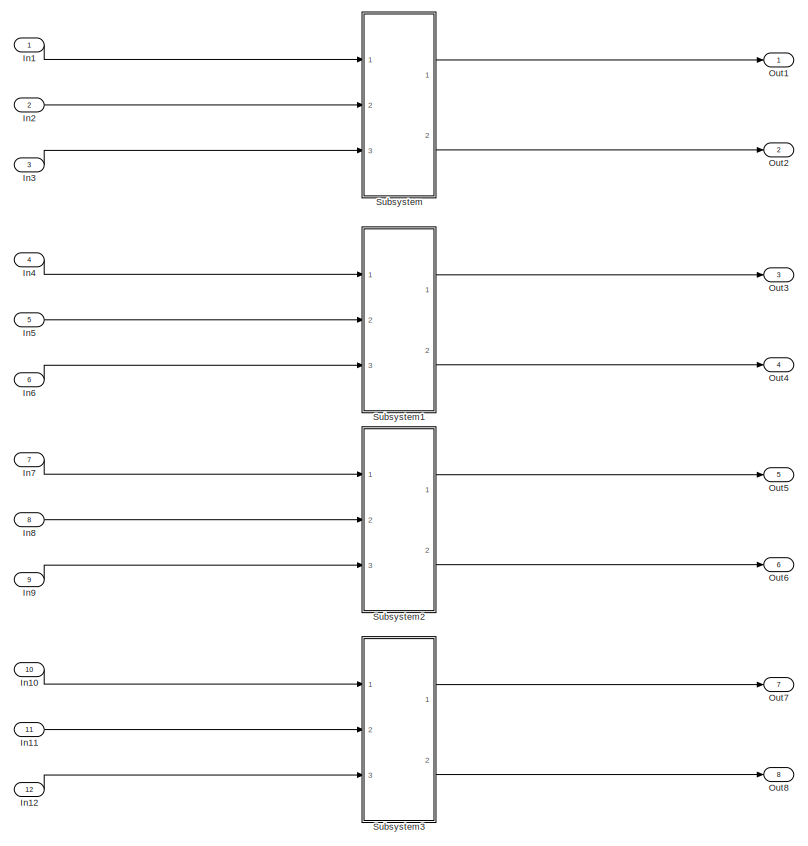
[diagram: root canvas - part 1/2, full width, top band]
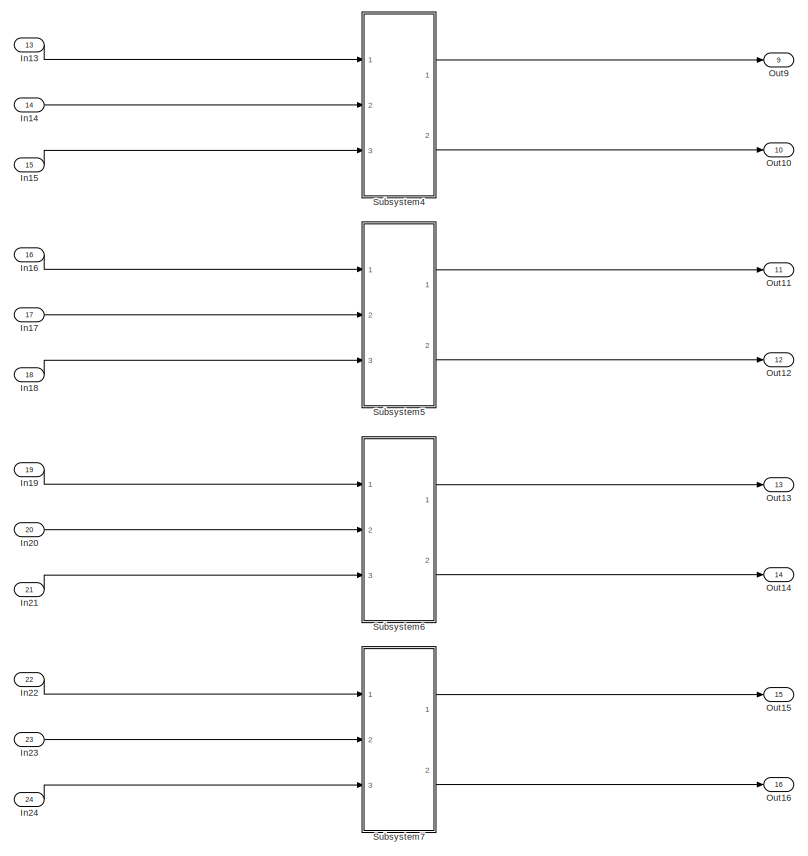
[diagram: root canvas - part 2/2, full width, bottom band]
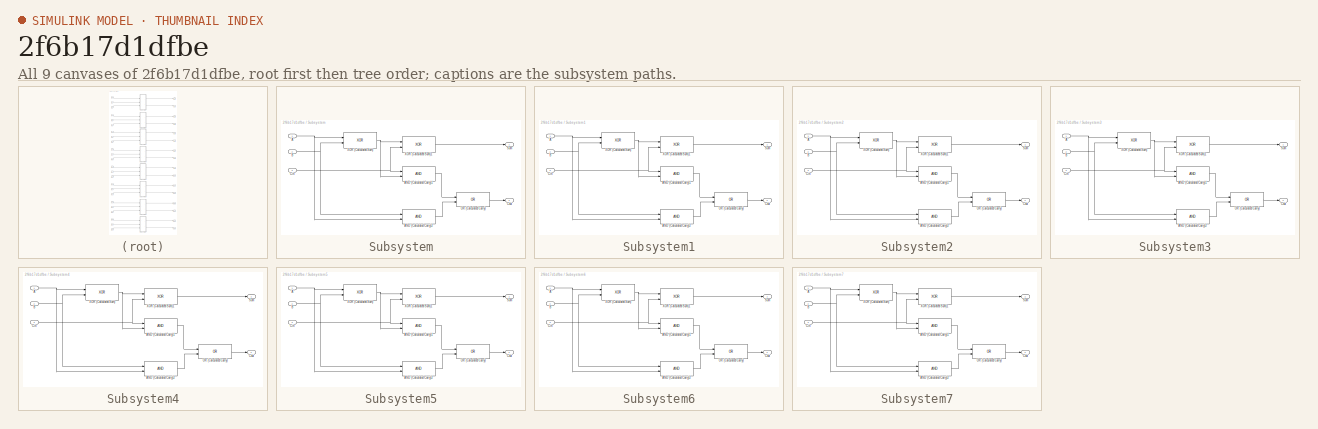
[diagram: thumbnail index - all 9 canvases of the model, root first then tree order]
MODEL slx_2f6b17d1dfbe
KIND model
BLOCK [Inport] In1
  IconDisplay = Port number
  OutDataTypeStr = boolean
  SampleTime = 1
BLOCK [Inport] In10
  IconDisplay = Port number
  OutDataTypeStr = boolean
  Port = 10
  SampleTime = 1
BLOCK [Inport] In11
  IconDisplay = Port number
  OutDataTypeStr = boolean
  Port = 11
  SampleTime = 1
BLOCK [Inport] In12
  IconDisplay = Port number
  OutDataTypeStr = boolean
  Port = 12
  SampleTime = 1
BLOCK [Inport] In13
  IconDisplay = Port number
  OutDataTypeStr = boolean
  Port = 13
  SampleTime = 1
BLOCK [Inport] In14
  IconDisplay = Port number
  OutDataTypeStr = boolean
  Port = 14
  SampleTime = 1
BLOCK [Inport] In15
  IconDisplay = Port number
  OutDataTypeStr = boolean
  Port = 15
  SampleTime = 1
BLOCK [Inport] In16
  IconDisplay = Port number
  OutDataTypeStr = boolean
  Port = 16
  SampleTime = 1
BLOCK [Inport] In17
  IconDisplay = Port number
  OutDataTypeStr = boolean
  Port = 17
  SampleTime = 1
BLOCK [Inport] In18
  IconDisplay = Port number
  OutDataTypeStr = boolean
  Port = 18
  SampleTime = 1
BLOCK [Inport] In19
  IconDisplay = Port number
  OutDataTypeStr = boolean
  Port = 19
  SampleTime = 1
BLOCK [Inport] In2
  IconDisplay = Port number
  OutDataTypeStr = boolean
  Port = 2
  SampleTime = 1
BLOCK [Inport] In20
  IconDisplay = Port number
  OutDataTypeStr = boolean
  Port = 20
  SampleTime = 1
BLOCK [Inport] In21
  IconDisplay = Port number
  OutDataTypeStr = boolean
  Port = 21
  SampleTime = 1
BLOCK [Inport] In22
  IconDisplay = Port number
  OutDataTypeStr = boolean
  Port = 22
  SampleTime = 1
BLOCK [Inport] In23
  IconDisplay = Port number
  OutDataTypeStr = boolean
  Port = 23
  SampleTime = 1
BLOCK [Inport] In24
  IconDisplay = Port number
  OutDataTypeStr = boolean
  Port = 24
  SampleTime = 1
BLOCK [Inport] In3
  IconDisplay = Port number
  OutDataTypeStr = boolean
  Port = 3
  SampleTime = 1
BLOCK [Inport] In4
  IconDisplay = Port number
  OutDataTypeStr = boolean
  Port = 4
  SampleTime = 1
BLOCK [Inport] In5
  IconDisplay = Port number
  OutDataTypeStr = boolean
  Port = 5
  SampleTime = 1
BLOCK [Inport] In6
  IconDisplay = Port number
  OutDataTypeStr = boolean
  Port = 6
  SampleTime = 1
BLOCK [Inport] In7
  IconDisplay = Port number
  OutDataTypeStr = boolean
  Port = 7
  SampleTime = 1
BLOCK [Inport] In8
  IconDisplay = Port number
  OutDataTypeStr = boolean
  Port = 8
  SampleTime = 1
BLOCK [Inport] In9
  IconDisplay = Port number
  OutDataTypeStr = boolean
  Port = 9
  SampleTime = 1
BLOCK [Outport] Out1
  IconDisplay = Port number
BLOCK [Outport] Out10
  IconDisplay = Port number
  Port = 10
BLOCK [Outport] Out11
  IconDisplay = Port number
  Port = 11
BLOCK [Outport] Out12
  IconDisplay = Port number
  Port = 12
BLOCK [Outport] Out13
  IconDisplay = Port number
  Port = 13
BLOCK [Outport] Out14
  IconDisplay = Port number
  Port = 14
BLOCK [Outport] Out15
  IconDisplay = Port number
  Port = 15
BLOCK [Outport] Out16
  IconDisplay = Port number
  Port = 16
BLOCK [Outport] Out2
  IconDisplay = Port number
  Port = 2
BLOCK [Outport] Out3
  IconDisplay = Port number
  Port = 3
BLOCK [Outport] Out4
  IconDisplay = Port number
  Port = 4
BLOCK [Outport] Out5
  IconDisplay = Port number
  Port = 5
BLOCK [Outport] Out6
  IconDisplay = Port number
  Port = 6
BLOCK [Outport] Out7
  IconDisplay = Port number
  Port = 7
BLOCK [Outport] Out8
  IconDisplay = Port number
  Port = 8
BLOCK [Outport] Out9
  IconDisplay = Port number
  Port = 9
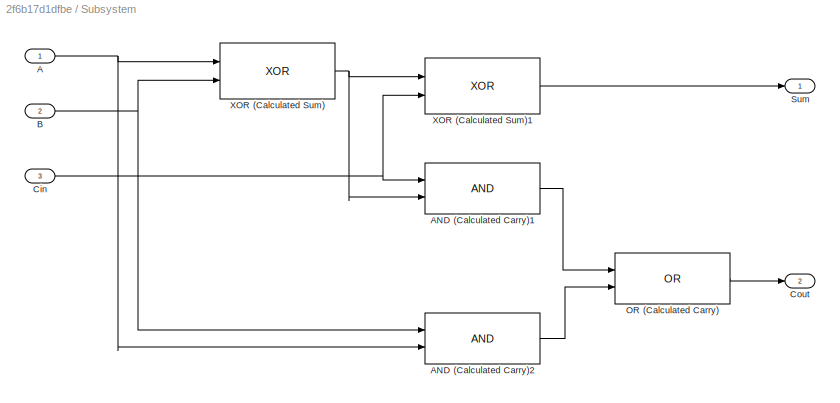
BLOCK [SubSystem] Subsystem
  Ports = [3, 2]
  RequestExecContextInheritance = off
BLOCK [Inport] Subsystem/A
  IconDisplay = Port number
  OutDataTypeStr = boolean
BLOCK [Logic] Subsystem/AND (Calculated Carry)1
  AllPortsSameDT = off
  OutDataTypeStr = boolean
  Ports = [2, 1]
BLOCK [Logic] Subsystem/AND (Calculated Carry)2
  AllPortsSameDT = off
  OutDataTypeStr = boolean
  Ports = [2, 1]
BLOCK [Inport] Subsystem/B
  IconDisplay = Port number
  OutDataTypeStr = boolean
  Port = 2
BLOCK [Inport] Subsystem/Cin
  IconDisplay = Port number
  OutDataTypeStr = boolean
  Port = 3
BLOCK [Outport] Subsystem/Cout
  IconDisplay = Port number
  Port = 2
BLOCK [Logic] Subsystem/OR (Calculated Carry)
  AllPortsSameDT = off
  Operator = OR
  OutDataTypeStr = boolean
  Ports = [2, 1]
BLOCK [Outport] Subsystem/Sum
  IconDisplay = Port number
BLOCK [Logic] Subsystem/XOR (Calculated Sum)
  AllPortsSameDT = off
  Operator = XOR
  OutDataTypeStr = boolean
  Ports = [2, 1]
BLOCK [Logic] Subsystem/XOR (Calculated Sum)1
  AllPortsSameDT = off
  Operator = XOR
  OutDataTypeStr = boolean
  Ports = [2, 1]
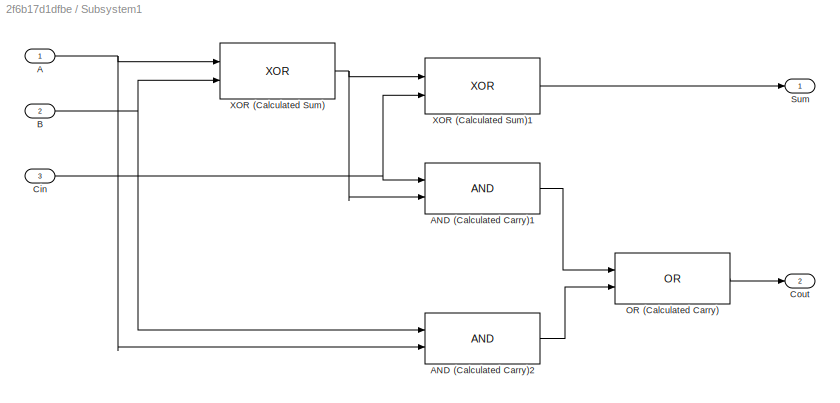
BLOCK [SubSystem] Subsystem1
  Ports = [3, 2]
  RequestExecContextInheritance = off
BLOCK [Inport] Subsystem1/A
  IconDisplay = Port number
  OutDataTypeStr = boolean
BLOCK [Logic] Subsystem1/AND (Calculated Carry)1
  AllPortsSameDT = off
  OutDataTypeStr = boolean
  Ports = [2, 1]
BLOCK [Logic] Subsystem1/AND (Calculated Carry)2
  AllPortsSameDT = off
  OutDataTypeStr = boolean
  Ports = [2, 1]
BLOCK [Inport] Subsystem1/B
  IconDisplay = Port number
  OutDataTypeStr = boolean
  Port = 2
BLOCK [Inport] Subsystem1/Cin
  IconDisplay = Port number
  OutDataTypeStr = boolean
  Port = 3
BLOCK [Outport] Subsystem1/Cout
  IconDisplay = Port number
  Port = 2
BLOCK [Logic] Subsystem1/OR (Calculated Carry)
  AllPortsSameDT = off
  Operator = OR
  OutDataTypeStr = boolean
  Ports = [2, 1]
BLOCK [Outport] Subsystem1/Sum
  IconDisplay = Port number
BLOCK [Logic] Subsystem1/XOR (Calculated Sum)
  AllPortsSameDT = off
  Operator = XOR
  OutDataTypeStr = boolean
  Ports = [2, 1]
BLOCK [Logic] Subsystem1/XOR (Calculated Sum)1
  AllPortsSameDT = off
  Operator = XOR
  OutDataTypeStr = boolean
  Ports = [2, 1]
BLOCK [SubSystem] Subsystem2
  Ports = [3, 2]
  RequestExecContextInheritance = off
BLOCK [Inport] Subsystem2/A
  IconDisplay = Port number
  OutDataTypeStr = boolean
BLOCK [Logic] Subsystem2/AND (Calculated Carry)1
  AllPortsSameDT = off
  OutDataTypeStr = boolean
  Ports = [2, 1]
BLOCK [Logic] Subsystem2/AND (Calculated Carry)2
  AllPortsSameDT = off
  OutDataTypeStr = boolean
  Ports = [2, 1]
BLOCK [Inport] Subsystem2/B
  IconDisplay = Port number
  OutDataTypeStr = boolean
  Port = 2
BLOCK [Inport] Subsystem2/Cin
  IconDisplay = Port number
  OutDataTypeStr = boolean
  Port = 3
BLOCK [Outport] Subsystem2/Cout
  IconDisplay = Port number
  Port = 2
BLOCK [Logic] Subsystem2/OR (Calculated Carry)
  AllPortsSameDT = off
  Operator = OR
  OutDataTypeStr = boolean
  Ports = [2, 1]
BLOCK [Outport] Subsystem2/Sum
  IconDisplay = Port number
BLOCK [Logic] Subsystem2/XOR (Calculated Sum)
  AllPortsSameDT = off
  Operator = XOR
  OutDataTypeStr = boolean
  Ports = [2, 1]
BLOCK [Logic] Subsystem2/XOR (Calculated Sum)1
  AllPortsSameDT = off
  Operator = XOR
  OutDataTypeStr = boolean
  Ports = [2, 1]
BLOCK [SubSystem] Subsystem3
  Ports = [3, 2]
  RequestExecContextInheritance = off
BLOCK [Inport] Subsystem3/A
  IconDisplay = Port number
  OutDataTypeStr = boolean
BLOCK [Logic] Subsystem3/AND (Calculated Carry)1
  AllPortsSameDT = off
  OutDataTypeStr = boolean
  Ports = [2, 1]
BLOCK [Logic] Subsystem3/AND (Calculated Carry)2
  AllPortsSameDT = off
  OutDataTypeStr = boolean
  Ports = [2, 1]
BLOCK [Inport] Subsystem3/B
  IconDisplay = Port number
  OutDataTypeStr = boolean
  Port = 2
BLOCK [Inport] Subsystem3/Cin
  IconDisplay = Port number
  OutDataTypeStr = boolean
  Port = 3
BLOCK [Outport] Subsystem3/Cout
  IconDisplay = Port number
  Port = 2
BLOCK [Logic] Subsystem3/OR (Calculated Carry)
  AllPortsSameDT = off
  Operator = OR
  OutDataTypeStr = boolean
  Ports = [2, 1]
BLOCK [Outport] Subsystem3/Sum
  IconDisplay = Port number
BLOCK [Logic] Subsystem3/XOR (Calculated Sum)
  AllPortsSameDT = off
  Operator = XOR
  OutDataTypeStr = boolean
  Ports = [2, 1]
BLOCK [Logic] Subsystem3/XOR (Calculated Sum)1
  AllPortsSameDT = off
  Operator = XOR
  OutDataTypeStr = boolean
  Ports = [2, 1]
BLOCK [SubSystem] Subsystem4
  Ports = [3, 2]
  RequestExecContextInheritance = off
BLOCK [Inport] Subsystem4/A
  IconDisplay = Port number
  OutDataTypeStr = boolean
BLOCK [Logic] Subsystem4/AND (Calculated Carry)1
  AllPortsSameDT = off
  OutDataTypeStr = boolean
  Ports = [2, 1]
BLOCK [Logic] Subsystem4/AND (Calculated Carry)2
  AllPortsSameDT = off
  OutDataTypeStr = boolean
  Ports = [2, 1]
BLOCK [Inport] Subsystem4/B
  IconDisplay = Port number
  OutDataTypeStr = boolean
  Port = 2
BLOCK [Inport] Subsystem4/Cin
  IconDisplay = Port number
  OutDataTypeStr = boolean
  Port = 3
BLOCK [Outport] Subsystem4/Cout
  IconDisplay = Port number
  Port = 2
BLOCK [Logic] Subsystem4/OR (Calculated Carry)
  AllPortsSameDT = off
  Operator = OR
  OutDataTypeStr = boolean
  Ports = [2, 1]
BLOCK [Outport] Subsystem4/Sum
  IconDisplay = Port number
BLOCK [Logic] Subsystem4/XOR (Calculated Sum)
  AllPortsSameDT = off
  Operator = XOR
  OutDataTypeStr = boolean
  Ports = [2, 1]
BLOCK [Logic] Subsystem4/XOR (Calculated Sum)1
  AllPortsSameDT = off
  Operator = XOR
  OutDataTypeStr = boolean
  Ports = [2, 1]
BLOCK [SubSystem] Subsystem5
  Ports = [3, 2]
  RequestExecContextInheritance = off
BLOCK [Inport] Subsystem5/A
  IconDisplay = Port number
  OutDataTypeStr = boolean
BLOCK [Logic] Subsystem5/AND (Calculated Carry)1
  AllPortsSameDT = off
  OutDataTypeStr = boolean
  Ports = [2, 1]
BLOCK [Logic] Subsystem5/AND (Calculated Carry)2
  AllPortsSameDT = off
  OutDataTypeStr = boolean
  Ports = [2, 1]
BLOCK [Inport] Subsystem5/B
  IconDisplay = Port number
  OutDataTypeStr = boolean
  Port = 2
BLOCK [Inport] Subsystem5/Cin
  IconDisplay = Port number
  OutDataTypeStr = boolean
  Port = 3
BLOCK [Outport] Subsystem5/Cout
  IconDisplay = Port number
  Port = 2
BLOCK [Logic] Subsystem5/OR (Calculated Carry)
  AllPortsSameDT = off
  Operator = OR
  OutDataTypeStr = boolean
  Ports = [2, 1]
BLOCK [Outport] Subsystem5/Sum
  IconDisplay = Port number
BLOCK [Logic] Subsystem5/XOR (Calculated Sum)
  AllPortsSameDT = off
  Operator = XOR
  OutDataTypeStr = boolean
  Ports = [2, 1]
BLOCK [Logic] Subsystem5/XOR (Calculated Sum)1
  AllPortsSameDT = off
  Operator = XOR
  OutDataTypeStr = boolean
  Ports = [2, 1]
BLOCK [SubSystem] Subsystem6
  Ports = [3, 2]
  RequestExecContextInheritance = off
BLOCK [Inport] Subsystem6/A
  IconDisplay = Port number
  OutDataTypeStr = boolean
BLOCK [Logic] Subsystem6/AND (Calculated Carry)1
  AllPortsSameDT = off
  OutDataTypeStr = boolean
  Ports = [2, 1]
BLOCK [Logic] Subsystem6/AND (Calculated Carry)2
  AllPortsSameDT = off
  OutDataTypeStr = boolean
  Ports = [2, 1]
BLOCK [Inport] Subsystem6/B
  IconDisplay = Port number
  OutDataTypeStr = boolean
  Port = 2
BLOCK [Inport] Subsystem6/Cin
  IconDisplay = Port number
  OutDataTypeStr = boolean
  Port = 3
BLOCK [Outport] Subsystem6/Cout
  IconDisplay = Port number
  Port = 2
BLOCK [Logic] Subsystem6/OR (Calculated Carry)
  AllPortsSameDT = off
  Operator = OR
  OutDataTypeStr = boolean
  Ports = [2, 1]
BLOCK [Outport] Subsystem6/Sum
  IconDisplay = Port number
BLOCK [Logic] Subsystem6/XOR (Calculated Sum)
  AllPortsSameDT = off
  Operator = XOR
  OutDataTypeStr = boolean
  Ports = [2, 1]
BLOCK [Logic] Subsystem6/XOR (Calculated Sum)1
  AllPortsSameDT = off
  Operator = XOR
  OutDataTypeStr = boolean
  Ports = [2, 1]
BLOCK [SubSystem] Subsystem7
  Ports = [3, 2]
  RequestExecContextInheritance = off
BLOCK [Inport] Subsystem7/A
  IconDisplay = Port number
  OutDataTypeStr = boolean
BLOCK [Logic] Subsystem7/AND (Calculated Carry)1
  AllPortsSameDT = off
  OutDataTypeStr = boolean
  Ports = [2, 1]
BLOCK [Logic] Subsystem7/AND (Calculated Carry)2
  AllPortsSameDT = off
  OutDataTypeStr = boolean
  Ports = [2, 1]
BLOCK [Inport] Subsystem7/B
  IconDisplay = Port number
  OutDataTypeStr = boolean
  Port = 2
BLOCK [Inport] Subsystem7/Cin
  IconDisplay = Port number
  OutDataTypeStr = boolean
  Port = 3
BLOCK [Outport] Subsystem7/Cout
  IconDisplay = Port number
  Port = 2
BLOCK [Logic] Subsystem7/OR (Calculated Carry)
  AllPortsSameDT = off
  Operator = OR
  OutDataTypeStr = boolean
  Ports = [2, 1]
BLOCK [Outport] Subsystem7/Sum
  IconDisplay = Port number
BLOCK [Logic] Subsystem7/XOR (Calculated Sum)
  AllPortsSameDT = off
  Operator = XOR
  OutDataTypeStr = boolean
  Ports = [2, 1]
BLOCK [Logic] Subsystem7/XOR (Calculated Sum)1
  AllPortsSameDT = off
  Operator = XOR
  OutDataTypeStr = boolean
  Ports = [2, 1]
LINE In10:1 -> Subsystem3:1
LINE In11:1 -> Subsystem3:2
LINE In12:1 -> Subsystem3:3
LINE In13:1 -> Subsystem4:1
LINE In14:1 -> Subsystem4:2
LINE In15:1 -> Subsystem4:3
LINE In16:1 -> Subsystem5:1
LINE In17:1 -> Subsystem5:2
LINE In18:1 -> Subsystem5:3
LINE In19:1 -> Subsystem6:1
LINE In1:1 -> Subsystem:1
LINE In20:1 -> Subsystem6:2
LINE In21:1 -> Subsystem6:3
LINE In22:1 -> Subsystem7:1
LINE In23:1 -> Subsystem7:2
LINE In24:1 -> Subsystem7:3
LINE In2:1 -> Subsystem:2
LINE In3:1 -> Subsystem:3
LINE In4:1 -> Subsystem1:1
LINE In5:1 -> Subsystem1:2
LINE In6:1 -> Subsystem1:3
LINE In7:1 -> Subsystem2:1
LINE In8:1 -> Subsystem2:2
LINE In9:1 -> Subsystem2:3
NET Subsystem/A:1 -> Subsystem/AND (Calculated Carry)2:2, Subsystem/XOR (Calculated Sum):1
LINE Subsystem/AND (Calculated Carry)1:1 -> Subsystem/OR (Calculated Carry):1
LINE Subsystem/AND (Calculated Carry)2:1 -> Subsystem/OR (Calculated Carry):2
NET Subsystem/B:1 -> Subsystem/AND (Calculated Carry)2:1, Subsystem/XOR (Calculated Sum):2
NET Subsystem/Cin:1 -> Subsystem/AND (Calculated Carry)1:1, Subsystem/XOR (Calculated Sum)1:2
LINE Subsystem/OR (Calculated Carry):1 -> Subsystem/Cout:1
LINE Subsystem/XOR (Calculated Sum)1:1 -> Subsystem/Sum:1
NET Subsystem/XOR (Calculated Sum):1 -> Subsystem/AND (Calculated Carry)1:2, Subsystem/XOR (Calculated Sum)1:1
NET Subsystem1/A:1 -> Subsystem1/AND (Calculated Carry)2:2, Subsystem1/XOR (Calculated Sum):1
LINE Subsystem1/AND (Calculated Carry)1:1 -> Subsystem1/OR (Calculated Carry):1
LINE Subsystem1/AND (Calculated Carry)2:1 -> Subsystem1/OR (Calculated Carry):2
NET Subsystem1/B:1 -> Subsystem1/AND (Calculated Carry)2:1, Subsystem1/XOR (Calculated Sum):2
NET Subsystem1/Cin:1 -> Subsystem1/AND (Calculated Carry)1:1, Subsystem1/XOR (Calculated Sum)1:2
LINE Subsystem1/OR (Calculated Carry):1 -> Subsystem1/Cout:1
LINE Subsystem1/XOR (Calculated Sum)1:1 -> Subsystem1/Sum:1
NET Subsystem1/XOR (Calculated Sum):1 -> Subsystem1/AND (Calculated Carry)1:2, Subsystem1/XOR (Calculated Sum)1:1
LINE Subsystem1:1 -> Out3:1
LINE Subsystem1:2 -> Out4:1
NET Subsystem2/A:1 -> Subsystem2/AND (Calculated Carry)2:2, Subsystem2/XOR (Calculated Sum):1
LINE Subsystem2/AND (Calculated Carry)1:1 -> Subsystem2/OR (Calculated Carry):1
LINE Subsystem2/AND (Calculated Carry)2:1 -> Subsystem2/OR (Calculated Carry):2
NET Subsystem2/B:1 -> Subsystem2/AND (Calculated Carry)2:1, Subsystem2/XOR (Calculated Sum):2
NET Subsystem2/Cin:1 -> Subsystem2/AND (Calculated Carry)1:1, Subsystem2/XOR (Calculated Sum)1:2
LINE Subsystem2/OR (Calculated Carry):1 -> Subsystem2/Cout:1
LINE Subsystem2/XOR (Calculated Sum)1:1 -> Subsystem2/Sum:1
NET Subsystem2/XOR (Calculated Sum):1 -> Subsystem2/AND (Calculated Carry)1:2, Subsystem2/XOR (Calculated Sum)1:1
LINE Subsystem2:1 -> Out5:1
LINE Subsystem2:2 -> Out6:1
NET Subsystem3/A:1 -> Subsystem3/AND (Calculated Carry)2:2, Subsystem3/XOR (Calculated Sum):1
LINE Subsystem3/AND (Calculated Carry)1:1 -> Subsystem3/OR (Calculated Carry):1
LINE Subsystem3/AND (Calculated Carry)2:1 -> Subsystem3/OR (Calculated Carry):2
NET Subsystem3/B:1 -> Subsystem3/AND (Calculated Carry)2:1, Subsystem3/XOR (Calculated Sum):2
NET Subsystem3/Cin:1 -> Subsystem3/AND (Calculated Carry)1:1, Subsystem3/XOR (Calculated Sum)1:2
LINE Subsystem3/OR (Calculated Carry):1 -> Subsystem3/Cout:1
LINE Subsystem3/XOR (Calculated Sum)1:1 -> Subsystem3/Sum:1
NET Subsystem3/XOR (Calculated Sum):1 -> Subsystem3/AND (Calculated Carry)1:2, Subsystem3/XOR (Calculated Sum)1:1
LINE Subsystem3:1 -> Out7:1
LINE Subsystem3:2 -> Out8:1
NET Subsystem4/A:1 -> Subsystem4/AND (Calculated Carry)2:2, Subsystem4/XOR (Calculated Sum):1
LINE Subsystem4/AND (Calculated Carry)1:1 -> Subsystem4/OR (Calculated Carry):1
LINE Subsystem4/AND (Calculated Carry)2:1 -> Subsystem4/OR (Calculated Carry):2
NET Subsystem4/B:1 -> Subsystem4/AND (Calculated Carry)2:1, Subsystem4/XOR (Calculated Sum):2
NET Subsystem4/Cin:1 -> Subsystem4/AND (Calculated Carry)1:1, Subsystem4/XOR (Calculated Sum)1:2
LINE Subsystem4/OR (Calculated Carry):1 -> Subsystem4/Cout:1
LINE Subsystem4/XOR (Calculated Sum)1:1 -> Subsystem4/Sum:1
NET Subsystem4/XOR (Calculated Sum):1 -> Subsystem4/AND (Calculated Carry)1:2, Subsystem4/XOR (Calculated Sum)1:1
LINE Subsystem4:1 -> Out9:1
LINE Subsystem4:2 -> Out10:1
NET Subsystem5/A:1 -> Subsystem5/AND (Calculated Carry)2:2, Subsystem5/XOR (Calculated Sum):1
LINE Subsystem5/AND (Calculated Carry)1:1 -> Subsystem5/OR (Calculated Carry):1
LINE Subsystem5/AND (Calculated Carry)2:1 -> Subsystem5/OR (Calculated Carry):2
NET Subsystem5/B:1 -> Subsystem5/AND (Calculated Carry)2:1, Subsystem5/XOR (Calculated Sum):2
NET Subsystem5/Cin:1 -> Subsystem5/AND (Calculated Carry)1:1, Subsystem5/XOR (Calculated Sum)1:2
LINE Subsystem5/OR (Calculated Carry):1 -> Subsystem5/Cout:1
LINE Subsystem5/XOR (Calculated Sum)1:1 -> Subsystem5/Sum:1
NET Subsystem5/XOR (Calculated Sum):1 -> Subsystem5/AND (Calculated Carry)1:2, Subsystem5/XOR (Calculated Sum)1:1
LINE Subsystem5:1 -> Out11:1
LINE Subsystem5:2 -> Out12:1
NET Subsystem6/A:1 -> Subsystem6/AND (Calculated Carry)2:2, Subsystem6/XOR (Calculated Sum):1
LINE Subsystem6/AND (Calculated Carry)1:1 -> Subsystem6/OR (Calculated Carry):1
LINE Subsystem6/AND (Calculated Carry)2:1 -> Subsystem6/OR (Calculated Carry):2
NET Subsystem6/B:1 -> Subsystem6/AND (Calculated Carry)2:1, Subsystem6/XOR (Calculated Sum):2
NET Subsystem6/Cin:1 -> Subsystem6/AND (Calculated Carry)1:1, Subsystem6/XOR (Calculated Sum)1:2
LINE Subsystem6/OR (Calculated Carry):1 -> Subsystem6/Cout:1
LINE Subsystem6/XOR (Calculated Sum)1:1 -> Subsystem6/Sum:1
NET Subsystem6/XOR (Calculated Sum):1 -> Subsystem6/AND (Calculated Carry)1:2, Subsystem6/XOR (Calculated Sum)1:1
LINE Subsystem6:1 -> Out13:1
LINE Subsystem6:2 -> Out14:1
NET Subsystem7/A:1 -> Subsystem7/AND (Calculated Carry)2:2, Subsystem7/XOR (Calculated Sum):1
LINE Subsystem7/AND (Calculated Carry)1:1 -> Subsystem7/OR (Calculated Carry):1
LINE Subsystem7/AND (Calculated Carry)2:1 -> Subsystem7/OR (Calculated Carry):2
NET Subsystem7/B:1 -> Subsystem7/AND (Calculated Carry)2:1, Subsystem7/XOR (Calculated Sum):2
NET Subsystem7/Cin:1 -> Subsystem7/AND (Calculated Carry)1:1, Subsystem7/XOR (Calculated Sum)1:2
LINE Subsystem7/OR (Calculated Carry):1 -> Subsystem7/Cout:1
LINE Subsystem7/XOR (Calculated Sum)1:1 -> Subsystem7/Sum:1
NET Subsystem7/XOR (Calculated Sum):1 -> Subsystem7/AND (Calculated Carry)1:2, Subsystem7/XOR (Calculated Sum)1:1
LINE Subsystem7:1 -> Out15:1
LINE Subsystem7:2 -> Out16:1
LINE Subsystem:1 -> Out1:1
LINE Subsystem:2 -> Out2:1
note: NET lines group one-source signal fan-out (src -> all destinations, sorted); 1:1 wires keep LINE
